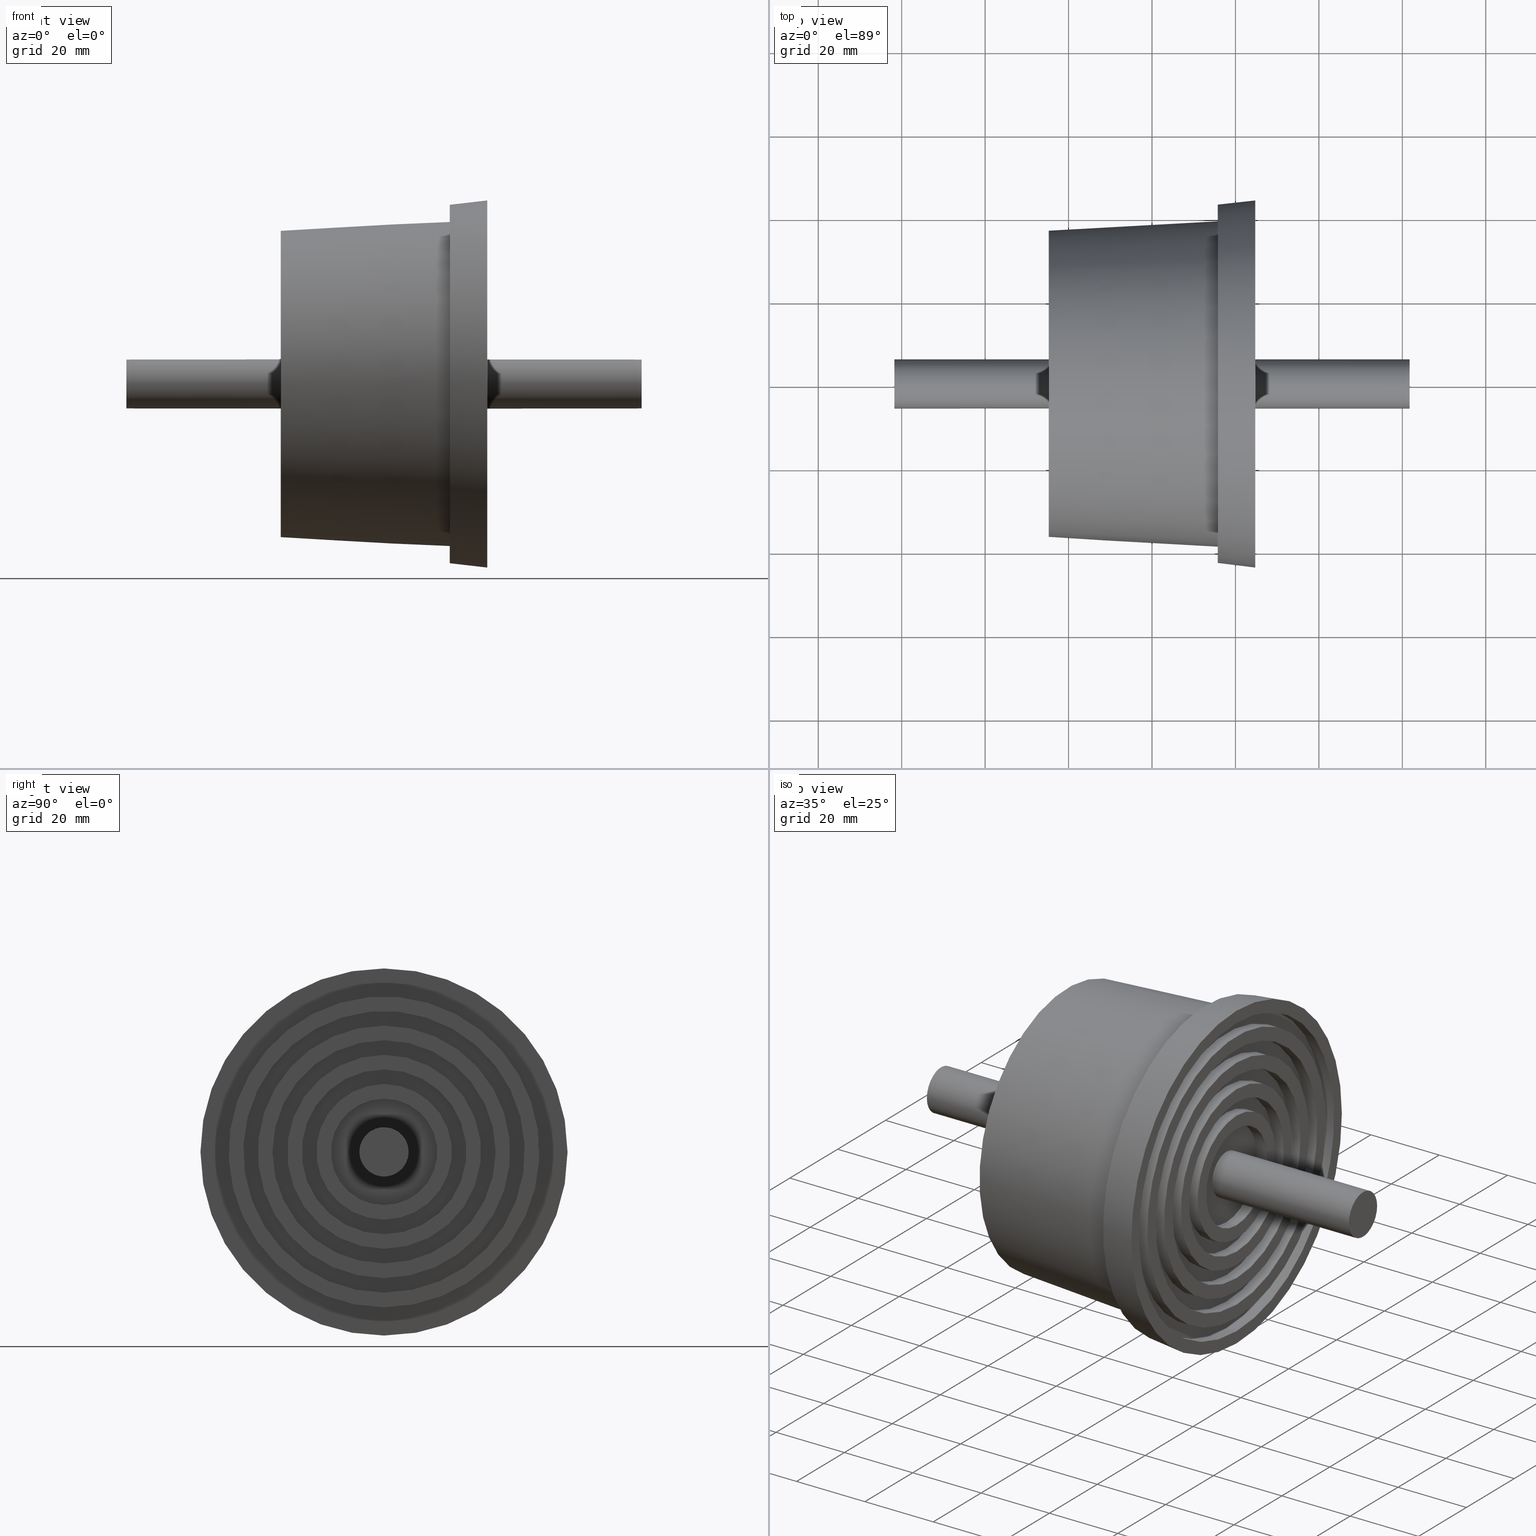
[diagram: canonical four-view strip — front | top / right | iso, engineering-drawing reading convention]
A machine part, canonical four-view strip (front | top / right | iso — engineering-drawing reading convention). The complete STEP part file that produces these views, byte-faithful:
ISO-10303-21;
HEADER;
/* Generated by software containing ST-Developer
 * from STEP Tools, Inc. (www.steptools.com) 
 */

FILE_DESCRIPTION(
/* description */ (''),
/* implementation_level */ '2;1');

FILE_NAME(
/* name */ '\\\\SYNOLOGYNAS\\web\\db2\\PR7-M12-75\\\X2\B3C4BA74\X0\\\D
R_PR7-M12-75.stp',
/* time_stamp */ '2024-10-21T14:43:21+09:00',
/* author */ ('user'),
/* organization */ (''),
/* preprocessor_version */ 'ST-DEVELOPER v15.6',
/* originating_system */ 'Autodesk Inventor 2015',
/* authorisation */ '');

FILE_SCHEMA (('AUTOMOTIVE_DESIGN { 1 0 10303 214 3 1 1 }'));
ENDSEC;

DATA;
#10=MECHANICAL_DESIGN_GEOMETRIC_PRESENTATION_REPRESENTATION('',(#13),#829);
#11=SHAPE_REPRESENTATION_RELATIONSHIP('SRR','None',#838,#12);
#12=ADVANCED_BREP_SHAPE_REPRESENTATION($,(#14),#828);
#13=STYLED_ITEM('',(#847),#14);
#14=MANIFOLD_SOLID_BREP('\X2\C194B9ACB4DC\X0\1',#457);
#15=CONICAL_SURFACE('',#529,37.875,3.17983011986423);
#16=CONICAL_SURFACE('',#533,43.5,6.34019174590998);
#17=PLANE('',#462);
#18=PLANE('',#470);
#19=PLANE('',#477);
#20=PLANE('',#484);
#21=PLANE('',#491);
#22=PLANE('',#492);
#23=PLANE('',#494);
#24=PLANE('',#495);
#25=PLANE('',#496);
#26=PLANE('',#500);
#27=PLANE('',#508);
#28=PLANE('',#515);
#29=PLANE('',#522);
#30=PLANE('',#523);
#31=PLANE('',#525);
#32=PLANE('',#526);
#33=PLANE('',#527);
#34=PLANE('',#528);
#35=PLANE('',#531);
#36=PLANE('',#536);
#37=PLANE('',#539);
#38=FACE_BOUND('',#119,.T.);
#39=FACE_BOUND('',#121,.T.);
#40=FACE_BOUND('',#123,.T.);
#41=FACE_BOUND('',#125,.T.);
#42=FACE_BOUND('',#127,.T.);
#43=FACE_BOUND('',#129,.T.);
#44=FACE_BOUND('',#131,.T.);
#45=FACE_BOUND('',#133,.T.);
#46=FACE_BOUND('',#135,.T.);
#47=FACE_BOUND('',#137,.T.);
#48=FACE_BOUND('',#139,.T.);
#49=FACE_BOUND('',#141,.T.);
#50=FACE_BOUND('',#143,.T.);
#51=FACE_BOUND('',#145,.T.);
#52=FACE_BOUND('',#147,.T.);
#53=FACE_BOUND('',#149,.T.);
#54=FACE_BOUND('',#151,.T.);
#55=FACE_BOUND('',#153,.T.);
#56=FACE_BOUND('',#155,.T.);
#57=FACE_BOUND('',#157,.T.);
#58=FACE_BOUND('',#159,.T.);
#59=FACE_BOUND('',#161,.T.);
#60=FACE_BOUND('',#163,.T.);
#61=FACE_BOUND('',#165,.T.);
#62=FACE_BOUND('',#167,.T.);
#63=FACE_BOUND('',#169,.T.);
#64=FACE_BOUND('',#171,.T.);
#65=FACE_BOUND('',#173,.T.);
#66=FACE_BOUND('',#175,.T.);
#67=FACE_BOUND('',#177,.T.);
#68=FACE_BOUND('',#179,.T.);
#69=FACE_BOUND('',#181,.T.);
#70=FACE_BOUND('',#183,.T.);
#71=FACE_BOUND('',#185,.T.);
#72=FACE_BOUND('',#187,.T.);
#73=FACE_BOUND('',#189,.T.);
#74=FACE_BOUND('',#191,.T.);
#75=FACE_BOUND('',#193,.T.);
#76=FACE_BOUND('',#196,.T.);
#77=FACE_OUTER_BOUND('',#118,.T.);
#78=FACE_OUTER_BOUND('',#120,.T.);
#79=FACE_OUTER_BOUND('',#122,.T.);
#80=FACE_OUTER_BOUND('',#124,.T.);
#81=FACE_OUTER_BOUND('',#126,.T.);
#82=FACE_OUTER_BOUND('',#128,.T.);
#83=FACE_OUTER_BOUND('',#130,.T.);
#84=FACE_OUTER_BOUND('',#132,.T.);
#85=FACE_OUTER_BOUND('',#134,.T.);
#86=FACE_OUTER_BOUND('',#136,.T.);
#87=FACE_OUTER_BOUND('',#138,.T.);
#88=FACE_OUTER_BOUND('',#140,.T.);
#89=FACE_OUTER_BOUND('',#142,.T.);
#90=FACE_OUTER_BOUND('',#144,.T.);
#91=FACE_OUTER_BOUND('',#146,.T.);
#92=FACE_OUTER_BOUND('',#148,.T.);
#93=FACE_OUTER_BOUND('',#150,.T.);
#94=FACE_OUTER_BOUND('',#152,.T.);
#95=FACE_OUTER_BOUND('',#154,.T.);
#96=FACE_OUTER_BOUND('',#156,.T.);
#97=FACE_OUTER_BOUND('',#158,.T.);
#98=FACE_OUTER_BOUND('',#160,.T.);
#99=FACE_OUTER_BOUND('',#162,.T.);
#100=FACE_OUTER_BOUND('',#164,.T.);
#101=FACE_OUTER_BOUND('',#166,.T.);
#102=FACE_OUTER_BOUND('',#168,.T.);
#103=FACE_OUTER_BOUND('',#170,.T.);
#104=FACE_OUTER_BOUND('',#172,.T.);
#105=FACE_OUTER_BOUND('',#174,.T.);
#106=FACE_OUTER_BOUND('',#176,.T.);
#107=FACE_OUTER_BOUND('',#178,.T.);
#108=FACE_OUTER_BOUND('',#180,.T.);
#109=FACE_OUTER_BOUND('',#182,.T.);
#110=FACE_OUTER_BOUND('',#184,.T.);
#111=FACE_OUTER_BOUND('',#186,.T.);
#112=FACE_OUTER_BOUND('',#188,.T.);
#113=FACE_OUTER_BOUND('',#190,.T.);
#114=FACE_OUTER_BOUND('',#192,.T.);
#115=FACE_OUTER_BOUND('',#194,.T.);
#116=FACE_OUTER_BOUND('',#195,.T.);
#117=FACE_OUTER_BOUND('',#197,.T.);
#118=EDGE_LOOP('',(#318));
#119=EDGE_LOOP('',(#319));
#120=EDGE_LOOP('',(#320));
#121=EDGE_LOOP('',(#321));
#122=EDGE_LOOP('',(#322));
#123=EDGE_LOOP('',(#323));
#124=EDGE_LOOP('',(#324));
#125=EDGE_LOOP('',(#325));
#126=EDGE_LOOP('',(#326));
#127=EDGE_LOOP('',(#327));
#128=EDGE_LOOP('',(#328));
#129=EDGE_LOOP('',(#329));
#130=EDGE_LOOP('',(#330));
#131=EDGE_LOOP('',(#331));
#132=EDGE_LOOP('',(#332));
#133=EDGE_LOOP('',(#333));
#134=EDGE_LOOP('',(#334));
#135=EDGE_LOOP('',(#335));
#136=EDGE_LOOP('',(#336));
#137=EDGE_LOOP('',(#337));
#138=EDGE_LOOP('',(#338));
#139=EDGE_LOOP('',(#339));
#140=EDGE_LOOP('',(#340));
#141=EDGE_LOOP('',(#341));
#142=EDGE_LOOP('',(#342));
#143=EDGE_LOOP('',(#343));
#144=EDGE_LOOP('',(#344));
#145=EDGE_LOOP('',(#345));
#146=EDGE_LOOP('',(#346));
#147=EDGE_LOOP('',(#347));
#148=EDGE_LOOP('',(#348));
#149=EDGE_LOOP('',(#349));
#150=EDGE_LOOP('',(#350));
#151=EDGE_LOOP('',(#351));
#152=EDGE_LOOP('',(#352));
#153=EDGE_LOOP('',(#353));
#154=EDGE_LOOP('',(#354));
#155=EDGE_LOOP('',(#355));
#156=EDGE_LOOP('',(#356));
#157=EDGE_LOOP('',(#357));
#158=EDGE_LOOP('',(#358));
#159=EDGE_LOOP('',(#359));
#160=EDGE_LOOP('',(#360));
#161=EDGE_LOOP('',(#361));
#162=EDGE_LOOP('',(#362));
#163=EDGE_LOOP('',(#363));
#164=EDGE_LOOP('',(#364));
#165=EDGE_LOOP('',(#365));
#166=EDGE_LOOP('',(#366));
#167=EDGE_LOOP('',(#367));
#168=EDGE_LOOP('',(#368));
#169=EDGE_LOOP('',(#369));
#170=EDGE_LOOP('',(#370));
#171=EDGE_LOOP('',(#371));
#172=EDGE_LOOP('',(#372));
#173=EDGE_LOOP('',(#373));
#174=EDGE_LOOP('',(#374));
#175=EDGE_LOOP('',(#375));
#176=EDGE_LOOP('',(#376));
#177=EDGE_LOOP('',(#377));
#178=EDGE_LOOP('',(#378));
#179=EDGE_LOOP('',(#379));
#180=EDGE_LOOP('',(#380));
#181=EDGE_LOOP('',(#381));
#182=EDGE_LOOP('',(#382));
#183=EDGE_LOOP('',(#383));
#184=EDGE_LOOP('',(#384));
#185=EDGE_LOOP('',(#385));
#186=EDGE_LOOP('',(#386));
#187=EDGE_LOOP('',(#387));
#188=EDGE_LOOP('',(#388));
#189=EDGE_LOOP('',(#389));
#190=EDGE_LOOP('',(#390));
#191=EDGE_LOOP('',(#391));
#192=EDGE_LOOP('',(#392));
#193=EDGE_LOOP('',(#393));
#194=EDGE_LOOP('',(#394));
#195=EDGE_LOOP('',(#395));
#196=EDGE_LOOP('',(#396));
#197=EDGE_LOOP('',(#397));
#198=CIRCLE('',#460,12.75);
#199=CIRCLE('',#461,12.75);
#200=CIRCLE('',#463,5.9);
#201=CIRCLE('',#465,16.25);
#202=CIRCLE('',#466,16.25);
#203=CIRCLE('',#468,19.75);
#204=CIRCLE('',#469,19.75);
#205=CIRCLE('',#472,23.25);
#206=CIRCLE('',#473,23.25);
#207=CIRCLE('',#475,26.75);
#208=CIRCLE('',#476,26.75);
#209=CIRCLE('',#479,30.25);
#210=CIRCLE('',#480,30.25);
#211=CIRCLE('',#482,33.75);
#212=CIRCLE('',#483,33.75);
#213=CIRCLE('',#486,37.25);
#214=CIRCLE('',#487,37.25);
#215=CIRCLE('',#489,40.75);
#216=CIRCLE('',#490,40.75);
#217=CIRCLE('',#493,44.);
#218=CIRCLE('',#498,12.25);
#219=CIRCLE('',#499,12.25);
#220=CIRCLE('',#501,5.9);
#221=CIRCLE('',#503,15.75);
#222=CIRCLE('',#504,15.75);
#223=CIRCLE('',#506,19.25);
#224=CIRCLE('',#507,19.25);
#225=CIRCLE('',#510,22.75);
#226=CIRCLE('',#511,22.75);
#227=CIRCLE('',#513,26.25);
#228=CIRCLE('',#514,26.25);
#229=CIRCLE('',#517,29.75);
#230=CIRCLE('',#518,29.75);
#231=CIRCLE('',#520,33.25);
#232=CIRCLE('',#521,33.25);
#233=CIRCLE('',#524,36.75);
#234=CIRCLE('',#530,39.);
#235=CIRCLE('',#532,43.);
#236=CIRCLE('',#535,5.9);
#237=CIRCLE('',#537,5.9);
#238=VERTEX_POINT('',#706);
#239=VERTEX_POINT('',#708);
#240=VERTEX_POINT('',#711);
#241=VERTEX_POINT('',#714);
#242=VERTEX_POINT('',#716);
#243=VERTEX_POINT('',#719);
#244=VERTEX_POINT('',#721);
#245=VERTEX_POINT('',#725);
#246=VERTEX_POINT('',#727);
#247=VERTEX_POINT('',#730);
#248=VERTEX_POINT('',#732);
#249=VERTEX_POINT('',#736);
#250=VERTEX_POINT('',#738);
#251=VERTEX_POINT('',#741);
#252=VERTEX_POINT('',#743);
#253=VERTEX_POINT('',#747);
#254=VERTEX_POINT('',#749);
#255=VERTEX_POINT('',#752);
#256=VERTEX_POINT('',#754);
#257=VERTEX_POINT('',#758);
#258=VERTEX_POINT('',#764);
#259=VERTEX_POINT('',#766);
#260=VERTEX_POINT('',#769);
#261=VERTEX_POINT('',#772);
#262=VERTEX_POINT('',#774);
#263=VERTEX_POINT('',#777);
#264=VERTEX_POINT('',#779);
#265=VERTEX_POINT('',#783);
#266=VERTEX_POINT('',#785);
#267=VERTEX_POINT('',#788);
#268=VERTEX_POINT('',#790);
#269=VERTEX_POINT('',#794);
#270=VERTEX_POINT('',#796);
#271=VERTEX_POINT('',#799);
#272=VERTEX_POINT('',#801);
#273=VERTEX_POINT('',#805);
#274=VERTEX_POINT('',#812);
#275=VERTEX_POINT('',#815);
#276=VERTEX_POINT('',#819);
#277=VERTEX_POINT('',#822);
#278=EDGE_CURVE('',#238,#238,#198,.T.);
#279=EDGE_CURVE('',#239,#239,#199,.T.);
#280=EDGE_CURVE('',#240,#240,#200,.T.);
#281=EDGE_CURVE('',#241,#241,#201,.T.);
#282=EDGE_CURVE('',#242,#242,#202,.T.);
#283=EDGE_CURVE('',#243,#243,#203,.T.);
#284=EDGE_CURVE('',#244,#244,#204,.T.);
#285=EDGE_CURVE('',#245,#245,#205,.T.);
#286=EDGE_CURVE('',#246,#246,#206,.T.);
#287=EDGE_CURVE('',#247,#247,#207,.T.);
#288=EDGE_CURVE('',#248,#248,#208,.T.);
#289=EDGE_CURVE('',#249,#249,#209,.T.);
#290=EDGE_CURVE('',#250,#250,#210,.T.);
#291=EDGE_CURVE('',#251,#251,#211,.T.);
#292=EDGE_CURVE('',#252,#252,#212,.T.);
#293=EDGE_CURVE('',#253,#253,#213,.T.);
#294=EDGE_CURVE('',#254,#254,#214,.T.);
#295=EDGE_CURVE('',#255,#255,#215,.T.);
#296=EDGE_CURVE('',#256,#256,#216,.T.);
#297=EDGE_CURVE('',#257,#257,#217,.T.);
#298=EDGE_CURVE('',#258,#258,#218,.T.);
#299=EDGE_CURVE('',#259,#259,#219,.T.);
#300=EDGE_CURVE('',#260,#260,#220,.T.);
#301=EDGE_CURVE('',#261,#261,#221,.T.);
#302=EDGE_CURVE('',#262,#262,#222,.T.);
#303=EDGE_CURVE('',#263,#263,#223,.T.);
#304=EDGE_CURVE('',#264,#264,#224,.T.);
#305=EDGE_CURVE('',#265,#265,#225,.T.);
#306=EDGE_CURVE('',#266,#266,#226,.T.);
#307=EDGE_CURVE('',#267,#267,#227,.T.);
#308=EDGE_CURVE('',#268,#268,#228,.T.);
#309=EDGE_CURVE('',#269,#269,#229,.T.);
#310=EDGE_CURVE('',#270,#270,#230,.T.);
#311=EDGE_CURVE('',#271,#271,#231,.T.);
#312=EDGE_CURVE('',#272,#272,#232,.T.);
#313=EDGE_CURVE('',#273,#273,#233,.T.);
#314=EDGE_CURVE('',#274,#274,#234,.T.);
#315=EDGE_CURVE('',#275,#275,#235,.T.);
#316=EDGE_CURVE('',#276,#276,#236,.T.);
#317=EDGE_CURVE('',#277,#277,#237,.T.);
#318=ORIENTED_EDGE('',*,*,#278,.T.);
#319=ORIENTED_EDGE('',*,*,#279,.F.);
#320=ORIENTED_EDGE('',*,*,#278,.F.);
#321=ORIENTED_EDGE('',*,*,#280,.F.);
#322=ORIENTED_EDGE('',*,*,#281,.T.);
#323=ORIENTED_EDGE('',*,*,#282,.F.);
#324=ORIENTED_EDGE('',*,*,#283,.T.);
#325=ORIENTED_EDGE('',*,*,#284,.F.);
#326=ORIENTED_EDGE('',*,*,#283,.F.);
#327=ORIENTED_EDGE('',*,*,#281,.F.);
#328=ORIENTED_EDGE('',*,*,#285,.T.);
#329=ORIENTED_EDGE('',*,*,#286,.F.);
#330=ORIENTED_EDGE('',*,*,#287,.T.);
#331=ORIENTED_EDGE('',*,*,#288,.F.);
#332=ORIENTED_EDGE('',*,*,#287,.F.);
#333=ORIENTED_EDGE('',*,*,#285,.F.);
#334=ORIENTED_EDGE('',*,*,#289,.T.);
#335=ORIENTED_EDGE('',*,*,#290,.F.);
#336=ORIENTED_EDGE('',*,*,#291,.T.);
#337=ORIENTED_EDGE('',*,*,#292,.F.);
#338=ORIENTED_EDGE('',*,*,#291,.F.);
#339=ORIENTED_EDGE('',*,*,#289,.F.);
#340=ORIENTED_EDGE('',*,*,#293,.T.);
#341=ORIENTED_EDGE('',*,*,#294,.F.);
#342=ORIENTED_EDGE('',*,*,#295,.T.);
#343=ORIENTED_EDGE('',*,*,#296,.F.);
#344=ORIENTED_EDGE('',*,*,#295,.F.);
#345=ORIENTED_EDGE('',*,*,#293,.F.);
#346=ORIENTED_EDGE('',*,*,#297,.T.);
#347=ORIENTED_EDGE('',*,*,#296,.T.);
#348=ORIENTED_EDGE('',*,*,#294,.T.);
#349=ORIENTED_EDGE('',*,*,#292,.T.);
#350=ORIENTED_EDGE('',*,*,#290,.T.);
#351=ORIENTED_EDGE('',*,*,#288,.T.);
#352=ORIENTED_EDGE('',*,*,#286,.T.);
#353=ORIENTED_EDGE('',*,*,#284,.T.);
#354=ORIENTED_EDGE('',*,*,#298,.T.);
#355=ORIENTED_EDGE('',*,*,#299,.F.);
#356=ORIENTED_EDGE('',*,*,#298,.F.);
#357=ORIENTED_EDGE('',*,*,#300,.F.);
#358=ORIENTED_EDGE('',*,*,#301,.T.);
#359=ORIENTED_EDGE('',*,*,#302,.F.);
#360=ORIENTED_EDGE('',*,*,#303,.T.);
#361=ORIENTED_EDGE('',*,*,#304,.F.);
#362=ORIENTED_EDGE('',*,*,#303,.F.);
#363=ORIENTED_EDGE('',*,*,#301,.F.);
#364=ORIENTED_EDGE('',*,*,#305,.T.);
#365=ORIENTED_EDGE('',*,*,#306,.F.);
#366=ORIENTED_EDGE('',*,*,#307,.T.);
#367=ORIENTED_EDGE('',*,*,#308,.F.);
#368=ORIENTED_EDGE('',*,*,#307,.F.);
#369=ORIENTED_EDGE('',*,*,#305,.F.);
#370=ORIENTED_EDGE('',*,*,#309,.T.);
#371=ORIENTED_EDGE('',*,*,#310,.F.);
#372=ORIENTED_EDGE('',*,*,#311,.T.);
#373=ORIENTED_EDGE('',*,*,#312,.F.);
#374=ORIENTED_EDGE('',*,*,#311,.F.);
#375=ORIENTED_EDGE('',*,*,#309,.F.);
#376=ORIENTED_EDGE('',*,*,#313,.F.);
#377=ORIENTED_EDGE('',*,*,#312,.T.);
#378=ORIENTED_EDGE('',*,*,#310,.T.);
#379=ORIENTED_EDGE('',*,*,#308,.T.);
#380=ORIENTED_EDGE('',*,*,#306,.T.);
#381=ORIENTED_EDGE('',*,*,#304,.T.);
#382=ORIENTED_EDGE('',*,*,#302,.T.);
#383=ORIENTED_EDGE('',*,*,#299,.T.);
#384=ORIENTED_EDGE('',*,*,#282,.T.);
#385=ORIENTED_EDGE('',*,*,#279,.T.);
#386=ORIENTED_EDGE('',*,*,#313,.T.);
#387=ORIENTED_EDGE('',*,*,#314,.F.);
#388=ORIENTED_EDGE('',*,*,#315,.F.);
#389=ORIENTED_EDGE('',*,*,#314,.T.);
#390=ORIENTED_EDGE('',*,*,#315,.T.);
#391=ORIENTED_EDGE('',*,*,#297,.F.);
#392=ORIENTED_EDGE('',*,*,#280,.T.);
#393=ORIENTED_EDGE('',*,*,#316,.F.);
#394=ORIENTED_EDGE('',*,*,#317,.F.);
#395=ORIENTED_EDGE('',*,*,#300,.T.);
#396=ORIENTED_EDGE('',*,*,#317,.T.);
#397=ORIENTED_EDGE('',*,*,#316,.T.);
#398=CYLINDRICAL_SURFACE('',#459,12.75);
#399=CYLINDRICAL_SURFACE('',#464,16.25);
#400=CYLINDRICAL_SURFACE('',#467,19.75);
#401=CYLINDRICAL_SURFACE('',#471,23.25);
#402=CYLINDRICAL_SURFACE('',#474,26.75);
#403=CYLINDRICAL_SURFACE('',#478,30.25);
#404=CYLINDRICAL_SURFACE('',#481,33.75);
#405=CYLINDRICAL_SURFACE('',#485,37.25);
#406=CYLINDRICAL_SURFACE('',#488,40.75);
#407=CYLINDRICAL_SURFACE('',#497,12.25);
#408=CYLINDRICAL_SURFACE('',#502,15.75);
#409=CYLINDRICAL_SURFACE('',#505,19.25);
#410=CYLINDRICAL_SURFACE('',#509,22.75);
#411=CYLINDRICAL_SURFACE('',#512,26.25);
#412=CYLINDRICAL_SURFACE('',#516,29.75);
#413=CYLINDRICAL_SURFACE('',#519,33.25);
#414=CYLINDRICAL_SURFACE('',#534,5.9);
#415=CYLINDRICAL_SURFACE('',#538,5.9);
#416=ADVANCED_FACE('',(#77,#38),#398,.F.);
#417=ADVANCED_FACE('',(#78,#39),#17,.F.);
#418=ADVANCED_FACE('',(#79,#40),#399,.T.);
#419=ADVANCED_FACE('',(#80,#41),#400,.F.);
#420=ADVANCED_FACE('',(#81,#42),#18,.F.);
#421=ADVANCED_FACE('',(#82,#43),#401,.T.);
#422=ADVANCED_FACE('',(#83,#44),#402,.F.);
#423=ADVANCED_FACE('',(#84,#45),#19,.F.);
#424=ADVANCED_FACE('',(#85,#46),#403,.T.);
#425=ADVANCED_FACE('',(#86,#47),#404,.F.);
#426=ADVANCED_FACE('',(#87,#48),#20,.F.);
#427=ADVANCED_FACE('',(#88,#49),#405,.T.);
#428=ADVANCED_FACE('',(#89,#50),#406,.F.);
#429=ADVANCED_FACE('',(#90,#51),#21,.F.);
#430=ADVANCED_FACE('',(#91,#52),#22,.T.);
#431=ADVANCED_FACE('',(#92,#53),#23,.T.);
#432=ADVANCED_FACE('',(#93,#54),#24,.T.);
#433=ADVANCED_FACE('',(#94,#55),#25,.T.);
#434=ADVANCED_FACE('',(#95,#56),#407,.F.);
#435=ADVANCED_FACE('',(#96,#57),#26,.T.);
#436=ADVANCED_FACE('',(#97,#58),#408,.T.);
#437=ADVANCED_FACE('',(#98,#59),#409,.F.);
#438=ADVANCED_FACE('',(#99,#60),#27,.T.);
#439=ADVANCED_FACE('',(#100,#61),#410,.T.);
#440=ADVANCED_FACE('',(#101,#62),#411,.F.);
#441=ADVANCED_FACE('',(#102,#63),#28,.T.);
#442=ADVANCED_FACE('',(#103,#64),#412,.T.);
#443=ADVANCED_FACE('',(#104,#65),#413,.F.);
#444=ADVANCED_FACE('',(#105,#66),#29,.T.);
#445=ADVANCED_FACE('',(#106,#67),#30,.T.);
#446=ADVANCED_FACE('',(#107,#68),#31,.T.);
#447=ADVANCED_FACE('',(#108,#69),#32,.T.);
#448=ADVANCED_FACE('',(#109,#70),#33,.T.);
#449=ADVANCED_FACE('',(#110,#71),#34,.T.);
#450=ADVANCED_FACE('',(#111,#72),#15,.T.);
#451=ADVANCED_FACE('',(#112,#73),#35,.T.);
#452=ADVANCED_FACE('',(#113,#74),#16,.T.);
#453=ADVANCED_FACE('',(#114,#75),#414,.T.);
#454=ADVANCED_FACE('',(#115),#36,.T.);
#455=ADVANCED_FACE('',(#116,#76),#415,.T.);
#456=ADVANCED_FACE('',(#117),#37,.T.);
#457=CLOSED_SHELL('',(#416,#417,#418,#419,#420,#421,#422,#423,#424,#425,
#426,#427,#428,#429,#430,#431,#432,#433,#434,#435,#436,#437,#438,#439,#440,
#441,#442,#443,#444,#445,#446,#447,#448,#449,#450,#451,#452,#453,#454,#455,
#456));
#458=AXIS2_PLACEMENT_3D('placement',#704,#540,#541);
#459=AXIS2_PLACEMENT_3D('',#705,#542,#543);
#460=AXIS2_PLACEMENT_3D('',#707,#544,#545);
#461=AXIS2_PLACEMENT_3D('',#709,#546,#547);
#462=AXIS2_PLACEMENT_3D('',#710,#548,#549);
#463=AXIS2_PLACEMENT_3D('',#712,#550,#551);
#464=AXIS2_PLACEMENT_3D('',#713,#552,#553);
#465=AXIS2_PLACEMENT_3D('',#715,#554,#555);
#466=AXIS2_PLACEMENT_3D('',#717,#556,#557);
#467=AXIS2_PLACEMENT_3D('',#718,#558,#559);
#468=AXIS2_PLACEMENT_3D('',#720,#560,#561);
#469=AXIS2_PLACEMENT_3D('',#722,#562,#563);
#470=AXIS2_PLACEMENT_3D('',#723,#564,#565);
#471=AXIS2_PLACEMENT_3D('',#724,#566,#567);
#472=AXIS2_PLACEMENT_3D('',#726,#568,#569);
#473=AXIS2_PLACEMENT_3D('',#728,#570,#571);
#474=AXIS2_PLACEMENT_3D('',#729,#572,#573);
#475=AXIS2_PLACEMENT_3D('',#731,#574,#575);
#476=AXIS2_PLACEMENT_3D('',#733,#576,#577);
#477=AXIS2_PLACEMENT_3D('',#734,#578,#579);
#478=AXIS2_PLACEMENT_3D('',#735,#580,#581);
#479=AXIS2_PLACEMENT_3D('',#737,#582,#583);
#480=AXIS2_PLACEMENT_3D('',#739,#584,#585);
#481=AXIS2_PLACEMENT_3D('',#740,#586,#587);
#482=AXIS2_PLACEMENT_3D('',#742,#588,#589);
#483=AXIS2_PLACEMENT_3D('',#744,#590,#591);
#484=AXIS2_PLACEMENT_3D('',#745,#592,#593);
#485=AXIS2_PLACEMENT_3D('',#746,#594,#595);
#486=AXIS2_PLACEMENT_3D('',#748,#596,#597);
#487=AXIS2_PLACEMENT_3D('',#750,#598,#599);
#488=AXIS2_PLACEMENT_3D('',#751,#600,#601);
#489=AXIS2_PLACEMENT_3D('',#753,#602,#603);
#490=AXIS2_PLACEMENT_3D('',#755,#604,#605);
#491=AXIS2_PLACEMENT_3D('',#756,#606,#607);
#492=AXIS2_PLACEMENT_3D('',#757,#608,#609);
#493=AXIS2_PLACEMENT_3D('',#759,#610,#611);
#494=AXIS2_PLACEMENT_3D('',#760,#612,#613);
#495=AXIS2_PLACEMENT_3D('',#761,#614,#615);
#496=AXIS2_PLACEMENT_3D('',#762,#616,#617);
#497=AXIS2_PLACEMENT_3D('',#763,#618,#619);
#498=AXIS2_PLACEMENT_3D('',#765,#620,#621);
#499=AXIS2_PLACEMENT_3D('',#767,#622,#623);
#500=AXIS2_PLACEMENT_3D('',#768,#624,#625);
#501=AXIS2_PLACEMENT_3D('',#770,#626,#627);
#502=AXIS2_PLACEMENT_3D('',#771,#628,#629);
#503=AXIS2_PLACEMENT_3D('',#773,#630,#631);
#504=AXIS2_PLACEMENT_3D('',#775,#632,#633);
#505=AXIS2_PLACEMENT_3D('',#776,#634,#635);
#506=AXIS2_PLACEMENT_3D('',#778,#636,#637);
#507=AXIS2_PLACEMENT_3D('',#780,#638,#639);
#508=AXIS2_PLACEMENT_3D('',#781,#640,#641);
#509=AXIS2_PLACEMENT_3D('',#782,#642,#643);
#510=AXIS2_PLACEMENT_3D('',#784,#644,#645);
#511=AXIS2_PLACEMENT_3D('',#786,#646,#647);
#512=AXIS2_PLACEMENT_3D('',#787,#648,#649);
#513=AXIS2_PLACEMENT_3D('',#789,#650,#651);
#514=AXIS2_PLACEMENT_3D('',#791,#652,#653);
#515=AXIS2_PLACEMENT_3D('',#792,#654,#655);
#516=AXIS2_PLACEMENT_3D('',#793,#656,#657);
#517=AXIS2_PLACEMENT_3D('',#795,#658,#659);
#518=AXIS2_PLACEMENT_3D('',#797,#660,#661);
#519=AXIS2_PLACEMENT_3D('',#798,#662,#663);
#520=AXIS2_PLACEMENT_3D('',#800,#664,#665);
#521=AXIS2_PLACEMENT_3D('',#802,#666,#667);
#522=AXIS2_PLACEMENT_3D('',#803,#668,#669);
#523=AXIS2_PLACEMENT_3D('',#804,#670,#671);
#524=AXIS2_PLACEMENT_3D('',#806,#672,#673);
#525=AXIS2_PLACEMENT_3D('',#807,#674,#675);
#526=AXIS2_PLACEMENT_3D('',#808,#676,#677);
#527=AXIS2_PLACEMENT_3D('',#809,#678,#679);
#528=AXIS2_PLACEMENT_3D('',#810,#680,#681);
#529=AXIS2_PLACEMENT_3D('',#811,#682,#683);
#530=AXIS2_PLACEMENT_3D('',#813,#684,#685);
#531=AXIS2_PLACEMENT_3D('',#814,#686,#687);
#532=AXIS2_PLACEMENT_3D('',#816,#688,#689);
#533=AXIS2_PLACEMENT_3D('',#817,#690,#691);
#534=AXIS2_PLACEMENT_3D('',#818,#692,#693);
#535=AXIS2_PLACEMENT_3D('',#820,#694,#695);
#536=AXIS2_PLACEMENT_3D('',#821,#696,#697);
#537=AXIS2_PLACEMENT_3D('',#823,#698,#699);
#538=AXIS2_PLACEMENT_3D('',#824,#700,#701);
#539=AXIS2_PLACEMENT_3D('',#825,#702,#703);
#540=DIRECTION('axis',(0.,0.,1.));
#541=DIRECTION('refdir',(1.,0.,0.));
#542=DIRECTION('center_axis',(-1.,-1.83697019872103E-16,0.));
#543=DIRECTION('ref_axis',(0.,0.,1.));
#544=DIRECTION('center_axis',(-1.,-1.83697019872103E-16,0.));
#545=DIRECTION('ref_axis',(0.,0.,1.));
#546=DIRECTION('center_axis',(-1.,-1.83697019872103E-16,0.));
#547=DIRECTION('ref_axis',(0.,0.,1.));
#548=DIRECTION('center_axis',(-1.,-1.83697019872103E-16,0.));
#549=DIRECTION('ref_axis',(0.,0.,1.));
#550=DIRECTION('center_axis',(1.,1.83697019872103E-16,0.));
#551=DIRECTION('ref_axis',(0.,0.,1.));
#552=DIRECTION('center_axis',(-1.,-1.83697019872103E-16,0.));
#553=DIRECTION('ref_axis',(0.,0.,1.));
#554=DIRECTION('center_axis',(1.,1.83697019872103E-16,0.));
#555=DIRECTION('ref_axis',(0.,0.,1.));
#556=DIRECTION('center_axis',(1.,1.83697019872103E-16,0.));
#557=DIRECTION('ref_axis',(0.,0.,1.));
#558=DIRECTION('center_axis',(-1.,-1.83697019872103E-16,0.));
#559=DIRECTION('ref_axis',(0.,0.,1.));
#560=DIRECTION('center_axis',(-1.,-1.83697019872103E-16,0.));
#561=DIRECTION('ref_axis',(0.,0.,1.));
#562=DIRECTION('center_axis',(-1.,-1.83697019872103E-16,0.));
#563=DIRECTION('ref_axis',(0.,0.,1.));
#564=DIRECTION('center_axis',(-1.,-1.83697019872103E-16,0.));
#565=DIRECTION('ref_axis',(0.,0.,1.));
#566=DIRECTION('center_axis',(-1.,-1.83697019872103E-16,0.));
#567=DIRECTION('ref_axis',(0.,0.,1.));
#568=DIRECTION('center_axis',(1.,1.83697019872103E-16,0.));
#569=DIRECTION('ref_axis',(0.,0.,1.));
#570=DIRECTION('center_axis',(1.,1.83697019872103E-16,0.));
#571=DIRECTION('ref_axis',(0.,0.,1.));
#572=DIRECTION('center_axis',(-1.,-1.83697019872103E-16,0.));
#573=DIRECTION('ref_axis',(0.,0.,1.));
#574=DIRECTION('center_axis',(-1.,-1.83697019872103E-16,0.));
#575=DIRECTION('ref_axis',(0.,0.,1.));
#576=DIRECTION('center_axis',(-1.,-1.83697019872103E-16,0.));
#577=DIRECTION('ref_axis',(0.,0.,1.));
#578=DIRECTION('center_axis',(-1.,-1.83697019872103E-16,0.));
#579=DIRECTION('ref_axis',(0.,0.,1.));
#580=DIRECTION('center_axis',(-1.,-1.83697019872103E-16,0.));
#581=DIRECTION('ref_axis',(0.,0.,1.));
#582=DIRECTION('center_axis',(1.,1.83697019872103E-16,0.));
#583=DIRECTION('ref_axis',(0.,0.,1.));
#584=DIRECTION('center_axis',(1.,1.83697019872103E-16,0.));
#585=DIRECTION('ref_axis',(0.,0.,1.));
#586=DIRECTION('center_axis',(-1.,-1.83697019872103E-16,0.));
#587=DIRECTION('ref_axis',(0.,0.,1.));
#588=DIRECTION('center_axis',(-1.,-1.83697019872103E-16,0.));
#589=DIRECTION('ref_axis',(0.,0.,1.));
#590=DIRECTION('center_axis',(-1.,-1.83697019872103E-16,0.));
#591=DIRECTION('ref_axis',(0.,0.,1.));
#592=DIRECTION('center_axis',(-1.,-1.83697019872103E-16,0.));
#593=DIRECTION('ref_axis',(0.,0.,1.));
#594=DIRECTION('center_axis',(-1.,-1.83697019872103E-16,0.));
#595=DIRECTION('ref_axis',(0.,0.,1.));
#596=DIRECTION('center_axis',(1.,1.83697019872103E-16,0.));
#597=DIRECTION('ref_axis',(0.,0.,1.));
#598=DIRECTION('center_axis',(1.,1.83697019872103E-16,0.));
#599=DIRECTION('ref_axis',(0.,0.,1.));
#600=DIRECTION('center_axis',(-1.,-1.83697019872103E-16,0.));
#601=DIRECTION('ref_axis',(0.,0.,1.));
#602=DIRECTION('center_axis',(-1.,-1.83697019872103E-16,0.));
#603=DIRECTION('ref_axis',(0.,0.,1.));
#604=DIRECTION('center_axis',(-1.,-1.83697019872103E-16,0.));
#605=DIRECTION('ref_axis',(0.,0.,1.));
#606=DIRECTION('center_axis',(-1.,-1.83697019872103E-16,0.));
#607=DIRECTION('ref_axis',(0.,0.,1.));
#608=DIRECTION('center_axis',(1.,1.83697019872103E-16,0.));
#609=DIRECTION('ref_axis',(0.,0.,-1.));
#610=DIRECTION('center_axis',(1.,1.83697019872103E-16,0.));
#611=DIRECTION('ref_axis',(0.,0.,-1.));
#612=DIRECTION('center_axis',(1.,1.83697019872103E-16,0.));
#613=DIRECTION('ref_axis',(0.,0.,-1.));
#614=DIRECTION('center_axis',(1.,1.83697019872103E-16,0.));
#615=DIRECTION('ref_axis',(0.,0.,-1.));
#616=DIRECTION('center_axis',(1.,1.83697019872103E-16,0.));
#617=DIRECTION('ref_axis',(0.,0.,-1.));
#618=DIRECTION('center_axis',(1.,1.83697019872103E-16,0.));
#619=DIRECTION('ref_axis',(0.,0.,-1.));
#620=DIRECTION('center_axis',(1.,1.83697019872103E-16,0.));
#621=DIRECTION('ref_axis',(0.,0.,-1.));
#622=DIRECTION('center_axis',(1.,1.83697019872103E-16,0.));
#623=DIRECTION('ref_axis',(0.,0.,-1.));
#624=DIRECTION('center_axis',(-1.,-1.83697019872103E-16,0.));
#625=DIRECTION('ref_axis',(0.,0.,1.));
#626=DIRECTION('center_axis',(-1.,-1.83697019872103E-16,0.));
#627=DIRECTION('ref_axis',(0.,0.,-1.));
#628=DIRECTION('center_axis',(1.,1.83697019872103E-16,0.));
#629=DIRECTION('ref_axis',(0.,0.,-1.));
#630=DIRECTION('center_axis',(-1.,-1.83697019872103E-16,0.));
#631=DIRECTION('ref_axis',(0.,0.,-1.));
#632=DIRECTION('center_axis',(-1.,-1.83697019872103E-16,0.));
#633=DIRECTION('ref_axis',(0.,0.,-1.));
#634=DIRECTION('center_axis',(1.,1.83697019872103E-16,0.));
#635=DIRECTION('ref_axis',(0.,0.,-1.));
#636=DIRECTION('center_axis',(1.,1.83697019872103E-16,0.));
#637=DIRECTION('ref_axis',(0.,0.,-1.));
#638=DIRECTION('center_axis',(1.,1.83697019872103E-16,0.));
#639=DIRECTION('ref_axis',(0.,0.,-1.));
#640=DIRECTION('center_axis',(-1.,-1.83697019872103E-16,0.));
#641=DIRECTION('ref_axis',(0.,0.,1.));
#642=DIRECTION('center_axis',(1.,1.83697019872103E-16,0.));
#643=DIRECTION('ref_axis',(0.,0.,-1.));
#644=DIRECTION('center_axis',(-1.,-1.83697019872103E-16,0.));
#645=DIRECTION('ref_axis',(0.,0.,-1.));
#646=DIRECTION('center_axis',(-1.,-1.83697019872103E-16,0.));
#647=DIRECTION('ref_axis',(0.,0.,-1.));
#648=DIRECTION('center_axis',(1.,1.83697019872103E-16,0.));
#649=DIRECTION('ref_axis',(0.,0.,-1.));
#650=DIRECTION('center_axis',(1.,1.83697019872103E-16,0.));
#651=DIRECTION('ref_axis',(0.,0.,-1.));
#652=DIRECTION('center_axis',(1.,1.83697019872103E-16,0.));
#653=DIRECTION('ref_axis',(0.,0.,-1.));
#654=DIRECTION('center_axis',(-1.,-1.83697019872103E-16,0.));
#655=DIRECTION('ref_axis',(0.,0.,1.));
#656=DIRECTION('center_axis',(1.,1.83697019872103E-16,0.));
#657=DIRECTION('ref_axis',(0.,0.,-1.));
#658=DIRECTION('center_axis',(-1.,-1.83697019872103E-16,0.));
#659=DIRECTION('ref_axis',(0.,0.,-1.));
#660=DIRECTION('center_axis',(-1.,-1.83697019872103E-16,0.));
#661=DIRECTION('ref_axis',(0.,0.,-1.));
#662=DIRECTION('center_axis',(1.,1.83697019872103E-16,0.));
#663=DIRECTION('ref_axis',(0.,0.,-1.));
#664=DIRECTION('center_axis',(1.,1.83697019872103E-16,0.));
#665=DIRECTION('ref_axis',(0.,0.,-1.));
#666=DIRECTION('center_axis',(1.,1.83697019872103E-16,0.));
#667=DIRECTION('ref_axis',(0.,0.,-1.));
#668=DIRECTION('center_axis',(-1.,-1.83697019872103E-16,0.));
#669=DIRECTION('ref_axis',(0.,0.,1.));
#670=DIRECTION('center_axis',(-1.,-1.83697019872103E-16,0.));
#671=DIRECTION('ref_axis',(0.,0.,1.));
#672=DIRECTION('center_axis',(1.,1.83697019872103E-16,0.));
#673=DIRECTION('ref_axis',(0.,0.,-1.));
#674=DIRECTION('center_axis',(-1.,-1.83697019872103E-16,0.));
#675=DIRECTION('ref_axis',(0.,0.,1.));
#676=DIRECTION('center_axis',(-1.,-1.83697019872103E-16,0.));
#677=DIRECTION('ref_axis',(0.,0.,1.));
#678=DIRECTION('center_axis',(-1.,-1.83697019872103E-16,0.));
#679=DIRECTION('ref_axis',(0.,0.,1.));
#680=DIRECTION('center_axis',(1.,1.83697019872103E-16,0.));
#681=DIRECTION('ref_axis',(0.,0.,-1.));
#682=DIRECTION('center_axis',(1.,1.83697019872103E-16,0.));
#683=DIRECTION('ref_axis',(0.,1.,0.));
#684=DIRECTION('center_axis',(1.,1.83697019872103E-16,0.));
#685=DIRECTION('ref_axis',(0.,0.,-1.));
#686=DIRECTION('center_axis',(-1.,-1.83697019872103E-16,0.));
#687=DIRECTION('ref_axis',(0.,0.,1.));
#688=DIRECTION('center_axis',(1.,1.83697019872103E-16,0.));
#689=DIRECTION('ref_axis',(0.,0.,-1.));
#690=DIRECTION('center_axis',(1.,1.83697019872103E-16,0.));
#691=DIRECTION('ref_axis',(0.,1.,0.));
#692=DIRECTION('center_axis',(1.,1.83697019872103E-16,0.));
#693=DIRECTION('ref_axis',(0.,1.,0.));
#694=DIRECTION('center_axis',(1.,1.83697019872103E-16,0.));
#695=DIRECTION('ref_axis',(0.,0.,-1.));
#696=DIRECTION('center_axis',(-1.,-1.83697019872103E-16,0.));
#697=DIRECTION('ref_axis',(0.,0.,1.));
#698=DIRECTION('center_axis',(1.,1.83697019872103E-16,0.));
#699=DIRECTION('ref_axis',(0.,0.,-1.));
#700=DIRECTION('center_axis',(1.,1.83697019872103E-16,0.));
#701=DIRECTION('ref_axis',(0.,1.,0.));
#702=DIRECTION('center_axis',(1.,1.83697019872103E-16,0.));
#703=DIRECTION('ref_axis',(0.,0.,-1.));
#704=CARTESIAN_POINT('',(0.,0.,0.));
#705=CARTESIAN_POINT('Origin',(24.75,1.58897922189369E-14,0.));
#706=CARTESIAN_POINT('',(21.75,1.69001258282335E-14,-12.75));
#707=CARTESIAN_POINT('Origin',(21.75,1.53387011593206E-14,0.));
#708=CARTESIAN_POINT('',(24.75,1.74512168878498E-14,-12.75));
#709=CARTESIAN_POINT('Origin',(24.75,1.58897922189369E-14,0.));
#710=CARTESIAN_POINT('Origin',(21.75,1.5448909377594E-14,7.1062749345524E-16));
#711=CARTESIAN_POINT('',(21.75,1.60612427708175E-14,-5.9));
#712=CARTESIAN_POINT('Origin',(21.75,1.53387011593206E-14,0.));
#713=CARTESIAN_POINT('Origin',(24.75,1.58897922189369E-14,0.));
#714=CARTESIAN_POINT('',(21.75,1.73287522079351E-14,-16.25));
#715=CARTESIAN_POINT('Origin',(21.75,1.53387011593206E-14,0.));
#716=CARTESIAN_POINT('',(24.75,1.78798432675514E-14,-16.25));
#717=CARTESIAN_POINT('Origin',(24.75,1.58897922189369E-14,0.));
#718=CARTESIAN_POINT('Origin',(24.75,1.58897922189369E-14,0.));
#719=CARTESIAN_POINT('',(21.75,1.77573785876366E-14,-19.75));
#720=CARTESIAN_POINT('Origin',(21.75,1.53387011593206E-14,0.));
#721=CARTESIAN_POINT('',(24.75,1.83084696472529E-14,-19.75));
#722=CARTESIAN_POINT('Origin',(24.75,1.58897922189369E-14,0.));
#723=CARTESIAN_POINT('Origin',(21.75,1.48390077573813E-14,9.51074106115049E-16));
#724=CARTESIAN_POINT('Origin',(24.75,1.58897922189369E-14,0.));
#725=CARTESIAN_POINT('',(21.75,1.81860049673382E-14,-23.25));
#726=CARTESIAN_POINT('Origin',(21.75,1.53387011593206E-14,0.));
#727=CARTESIAN_POINT('',(24.75,1.87370960269545E-14,-23.25));
#728=CARTESIAN_POINT('Origin',(24.75,1.58897922189369E-14,0.));
#729=CARTESIAN_POINT('Origin',(24.75,1.58897922189369E-14,0.));
#730=CARTESIAN_POINT('',(21.75,1.86146313470398E-14,-26.75));
#731=CARTESIAN_POINT('Origin',(21.75,1.53387011593206E-14,0.));
#732=CARTESIAN_POINT('',(24.75,1.91657224066561E-14,-26.75));
#733=CARTESIAN_POINT('Origin',(24.75,1.58897922189369E-14,0.));
#734=CARTESIAN_POINT('Origin',(21.75,1.53783802745697E-14,2.72994182309931E-16));
#735=CARTESIAN_POINT('Origin',(24.75,1.58897922189369E-14,0.));
#736=CARTESIAN_POINT('',(21.75,1.90432577267413E-14,-30.25));
#737=CARTESIAN_POINT('Origin',(21.75,1.53387011593206E-14,0.));
#738=CARTESIAN_POINT('',(24.75,1.95943487863577E-14,-30.25));
#739=CARTESIAN_POINT('Origin',(24.75,1.58897922189369E-14,0.));
#740=CARTESIAN_POINT('Origin',(24.75,1.58897922189369E-14,0.));
#741=CARTESIAN_POINT('',(21.75,1.94718841064429E-14,-33.75));
#742=CARTESIAN_POINT('Origin',(21.75,1.53387011593206E-14,0.));
#743=CARTESIAN_POINT('',(24.75,2.00229751660592E-14,-33.75));
#744=CARTESIAN_POINT('Origin',(24.75,1.58897922189369E-14,0.));
#745=CARTESIAN_POINT('Origin',(21.75,1.83256528429989E-14,2.09885842030982E-15));
#746=CARTESIAN_POINT('Origin',(24.75,1.58897922189369E-14,0.));
#747=CARTESIAN_POINT('',(21.75,1.99005104861445E-14,-37.25));
#748=CARTESIAN_POINT('Origin',(21.75,1.53387011593206E-14,0.));
#749=CARTESIAN_POINT('',(24.75,2.04516015457608E-14,-37.25));
#750=CARTESIAN_POINT('Origin',(24.75,1.58897922189369E-14,0.));
#751=CARTESIAN_POINT('Origin',(24.75,1.58897922189369E-14,0.));
#752=CARTESIAN_POINT('',(21.75,2.03291368658461E-14,-40.75));
#753=CARTESIAN_POINT('Origin',(21.75,1.53387011593206E-14,0.));
#754=CARTESIAN_POINT('',(24.75,2.08802279254624E-14,-40.75));
#755=CARTESIAN_POINT('Origin',(24.75,1.58897922189369E-14,0.));
#756=CARTESIAN_POINT('Origin',(21.75,1.73542602518856E-14,1.86892227157671E-15));
#757=CARTESIAN_POINT('Origin',(24.75,9.0930024836691E-15,0.));
#758=CARTESIAN_POINT('',(24.75,44.,0.));
#759=CARTESIAN_POINT('Origin',(24.75,1.58897922189369E-14,0.));
#760=CARTESIAN_POINT('Origin',(24.75,9.0930024836691E-15,0.));
#761=CARTESIAN_POINT('Origin',(24.75,9.0930024836691E-15,0.));
#762=CARTESIAN_POINT('Origin',(24.75,9.0930024836691E-15,0.));
#763=CARTESIAN_POINT('Origin',(-24.75,6.79678973526781E-15,0.));
#764=CARTESIAN_POINT('',(-21.75,8.84807312383963E-15,12.25));
#765=CARTESIAN_POINT('Origin',(-21.75,7.34788079488412E-15,0.));
#766=CARTESIAN_POINT('',(-24.75,8.29698206422332E-15,12.25));
#767=CARTESIAN_POINT('Origin',(-24.75,6.79678973526781E-15,0.));
#768=CARTESIAN_POINT('Origin',(-21.75,7.57486866316518E-15,-1.25016027412959E-16));
#769=CARTESIAN_POINT('',(-21.75,8.07042240638106E-15,5.9));
#770=CARTESIAN_POINT('Origin',(-21.75,7.34788079488412E-15,0.));
#771=CARTESIAN_POINT('Origin',(-24.75,6.79678973526781E-15,0.));
#772=CARTESIAN_POINT('',(-21.75,9.2766995035412E-15,15.75));
#773=CARTESIAN_POINT('Origin',(-21.75,7.34788079488412E-15,0.));
#774=CARTESIAN_POINT('',(-24.75,8.72560844392489E-15,15.75));
#775=CARTESIAN_POINT('Origin',(-24.75,6.79678973526781E-15,0.));
#776=CARTESIAN_POINT('Origin',(-24.75,6.79678973526781E-15,0.));
#777=CARTESIAN_POINT('',(-21.75,9.70532588324278E-15,19.25));
#778=CARTESIAN_POINT('Origin',(-21.75,7.34788079488412E-15,0.));
#779=CARTESIAN_POINT('',(-24.75,9.15423482362647E-15,19.25));
#780=CARTESIAN_POINT('Origin',(-24.75,6.79678973526781E-15,0.));
#781=CARTESIAN_POINT('Origin',(-21.75,7.64352809573321E-15,-9.65439402125235E-16));
#782=CARTESIAN_POINT('Origin',(-24.75,6.79678973526781E-15,0.));
#783=CARTESIAN_POINT('',(-21.75,1.01339522629443E-14,22.75));
#784=CARTESIAN_POINT('Origin',(-21.75,7.34788079488412E-15,0.));
#785=CARTESIAN_POINT('',(-24.75,9.58286120332804E-15,22.75));
#786=CARTESIAN_POINT('Origin',(-24.75,6.79678973526781E-15,0.));
#787=CARTESIAN_POINT('Origin',(-24.75,6.79678973526781E-15,0.));
#788=CARTESIAN_POINT('',(-21.75,1.05625786426459E-14,26.25));
#789=CARTESIAN_POINT('Origin',(-21.75,7.34788079488412E-15,0.));
#790=CARTESIAN_POINT('',(-24.75,1.00114875830296E-14,26.25));
#791=CARTESIAN_POINT('Origin',(-24.75,6.79678973526781E-15,0.));
#792=CARTESIAN_POINT('Origin',(-21.75,7.0411560073363E-15,-1.3957370996311E-15));
#793=CARTESIAN_POINT('Origin',(-24.75,6.79678973526781E-15,0.));
#794=CARTESIAN_POINT('',(-21.75,1.09912050223475E-14,29.75));
#795=CARTESIAN_POINT('Origin',(-21.75,7.34788079488412E-15,0.));
#796=CARTESIAN_POINT('',(-24.75,1.04401139627312E-14,29.75));
#797=CARTESIAN_POINT('Origin',(-24.75,6.79678973526781E-15,0.));
#798=CARTESIAN_POINT('Origin',(-24.75,6.79678973526781E-15,0.));
#799=CARTESIAN_POINT('',(-21.75,1.14198314020491E-14,33.25));
#800=CARTESIAN_POINT('Origin',(-21.75,7.34788079488412E-15,0.));
#801=CARTESIAN_POINT('',(-24.75,1.08687403424328E-14,33.25));
#802=CARTESIAN_POINT('Origin',(-24.75,6.79678973526781E-15,0.));
#803=CARTESIAN_POINT('Origin',(-21.75,9.25232701043268E-15,-1.22973364804081E-15));
#804=CARTESIAN_POINT('Origin',(-24.75,36.75,0.));
#805=CARTESIAN_POINT('',(-24.75,36.75,0.));
#806=CARTESIAN_POINT('Origin',(-24.75,6.79678973526781E-15,0.));
#807=CARTESIAN_POINT('Origin',(-24.75,36.75,0.));
#808=CARTESIAN_POINT('Origin',(-24.75,36.75,0.));
#809=CARTESIAN_POINT('Origin',(-24.75,36.75,0.));
#810=CARTESIAN_POINT('Origin',(24.75,9.0930024836691E-15,0.));
#811=CARTESIAN_POINT('Origin',(-4.50000000000001,1.05166543876779E-14,0.));
#812=CARTESIAN_POINT('',(15.75,39.,0.));
#813=CARTESIAN_POINT('Origin',(15.75,1.4236519040088E-14,0.));
#814=CARTESIAN_POINT('Origin',(15.75,43.,0.));
#815=CARTESIAN_POINT('',(15.75,43.,0.));
#816=CARTESIAN_POINT('Origin',(15.75,1.4236519040088E-14,0.));
#817=CARTESIAN_POINT('Origin',(20.25,1.50631556295124E-14,0.));
#818=CARTESIAN_POINT('Origin',(0.,1.13432909771024E-14,0.));
#819=CARTESIAN_POINT('',(61.75,5.90000000000002,0.));
#820=CARTESIAN_POINT('Origin',(61.75,2.26865819542047E-14,0.));
#821=CARTESIAN_POINT('Origin',(-61.75,5.9,0.));
#822=CARTESIAN_POINT('',(-61.75,5.9,0.));
#823=CARTESIAN_POINT('Origin',(-61.75,0.,0.));
#824=CARTESIAN_POINT('Origin',(0.,1.13432909771024E-14,0.));
#825=CARTESIAN_POINT('Origin',(61.75,2.26865819542047E-14,0.));
#826=UNCERTAINTY_MEASURE_WITH_UNIT(LENGTH_MEASURE(0.01),#830,
'DISTANCE_ACCURACY_VALUE',
'Maximum model space distance between geometric entities at asserted c
onnectivities');
#827=UNCERTAINTY_MEASURE_WITH_UNIT(LENGTH_MEASURE(1.E-6),#830,
'DISTANCE_ACCURACY_VALUE',
'Maximum model space distance between geometric entities at asserted c
onnectivities');
#828=(
GEOMETRIC_REPRESENTATION_CONTEXT(3)
GLOBAL_UNCERTAINTY_ASSIGNED_CONTEXT((#826))
GLOBAL_UNIT_ASSIGNED_CONTEXT((#830,#833,#831))
REPRESENTATION_CONTEXT('','3D')
);
#829=(
GEOMETRIC_REPRESENTATION_CONTEXT(3)
GLOBAL_UNCERTAINTY_ASSIGNED_CONTEXT((#827))
GLOBAL_UNIT_ASSIGNED_CONTEXT((#830,#833,#831))
REPRESENTATION_CONTEXT('','3D')
);
#830=(
LENGTH_UNIT()
NAMED_UNIT(*)
SI_UNIT(.MILLI.,.METRE.)
);
#831=(
NAMED_UNIT(*)
SI_UNIT($,.STERADIAN.)
SOLID_ANGLE_UNIT()
);
#832=DIMENSIONAL_EXPONENTS(0.,0.,0.,0.,0.,0.,0.);
#833=(
CONVERSION_BASED_UNIT('degree',#835)
NAMED_UNIT(#832)
PLANE_ANGLE_UNIT()
);
#834=(
NAMED_UNIT(*)
PLANE_ANGLE_UNIT()
SI_UNIT($,.RADIAN.)
);
#835=PLANE_ANGLE_MEASURE_WITH_UNIT(PLANE_ANGLE_MEASURE(0.01745329252),#834);
#836=SHAPE_DEFINITION_REPRESENTATION(#837,#838);
#837=PRODUCT_DEFINITION_SHAPE('',$,#840);
#838=SHAPE_REPRESENTATION('',(#458),#828);
#839=PRODUCT_DEFINITION_CONTEXT('part definition',#844,'design');
#840=PRODUCT_DEFINITION('DR_PR7-M12-75','DR_PR7-M12-75',#841,#839);
#841=PRODUCT_DEFINITION_FORMATION('',$,#846);
#842=PRODUCT_RELATED_PRODUCT_CATEGORY('DR_PR7-M12-75','DR_PR7-M12-75',(#846));
#843=APPLICATION_PROTOCOL_DEFINITION('international standard',
'automotive_design',2009,#844);
#844=APPLICATION_CONTEXT(
'Core Data for Automotive Mechanical Design Process');
#845=PRODUCT_CONTEXT('part definition',#844,'mechanical');
#846=PRODUCT('DR_PR7-M12-75','DR_PR7-M12-75',$,(#845));
#847=PRESENTATION_STYLE_ASSIGNMENT((#848));
#848=SURFACE_STYLE_USAGE(.BOTH.,#849);
#849=SURFACE_SIDE_STYLE($,(#850));
#850=SURFACE_STYLE_FILL_AREA(#851);
#851=FILL_AREA_STYLE($,(#852));
#852=FILL_AREA_STYLE_COLOUR($,#853);
#853=COLOUR_RGB('',1.,1.,1.);
ENDSEC;
END-ISO-10303-21;
